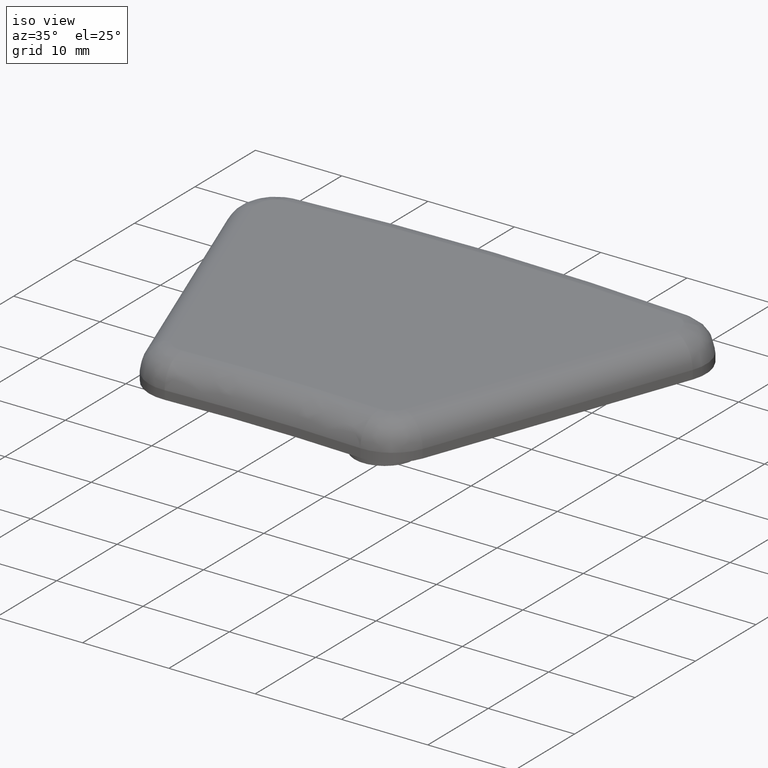
[diagram: clean part render]
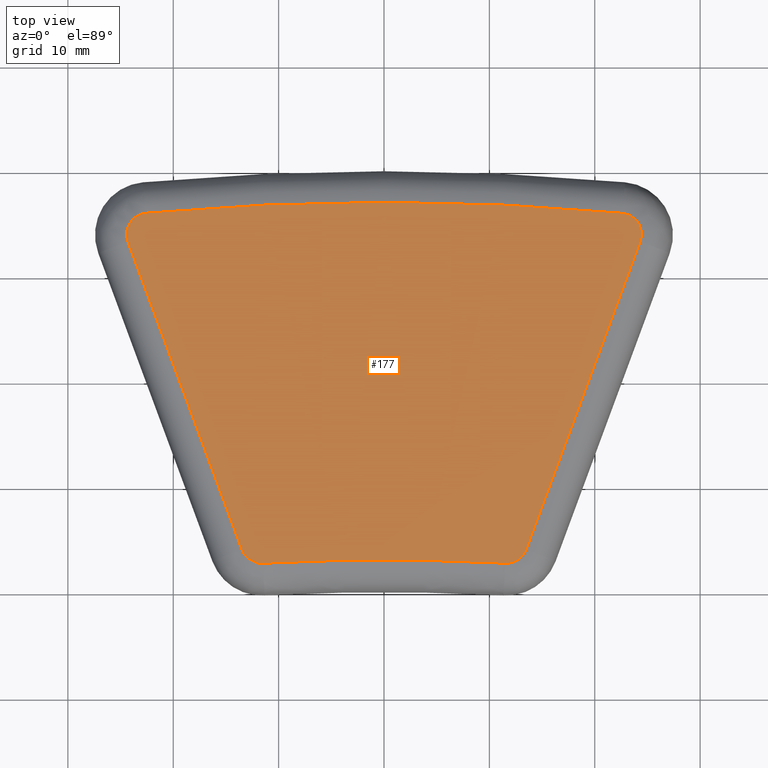
[diagram: tour spotlight — one face highlighted and labeled with its STEP entity id]
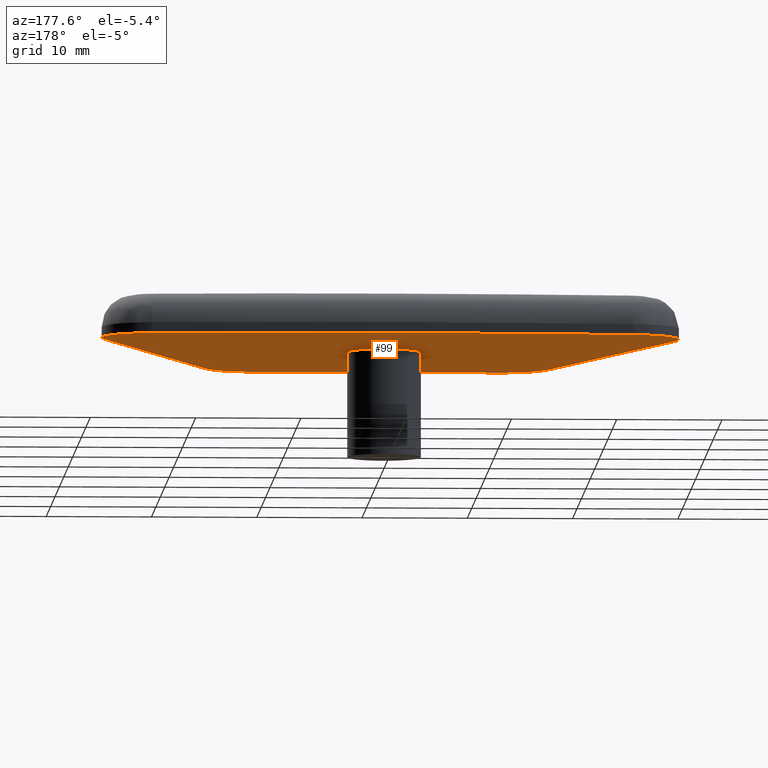
[diagram: tour spotlight — one face highlighted and labeled with its STEP entity id]
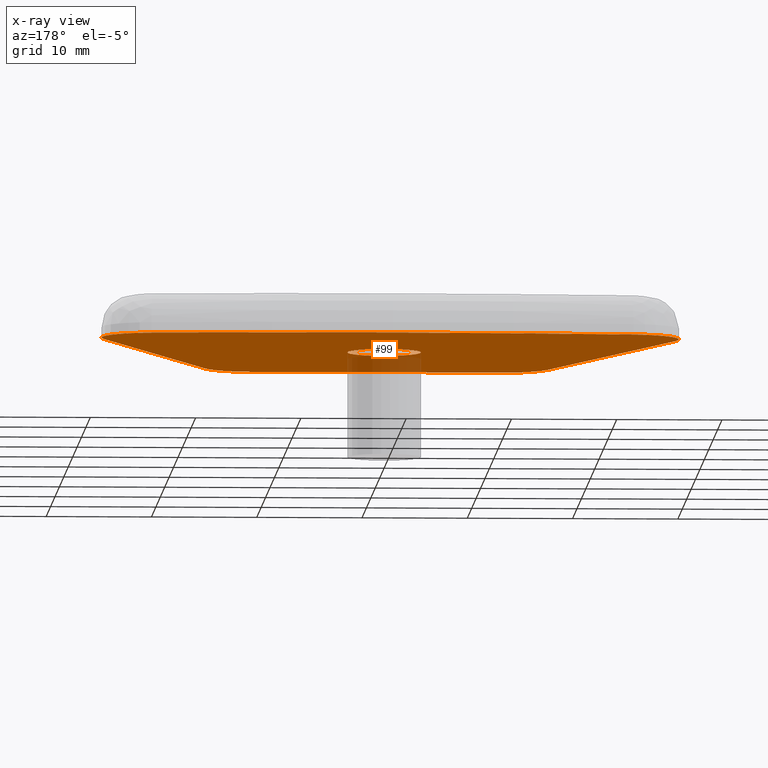
[diagram: x-ray of the same camera — body ghosted, this tour face saturated]
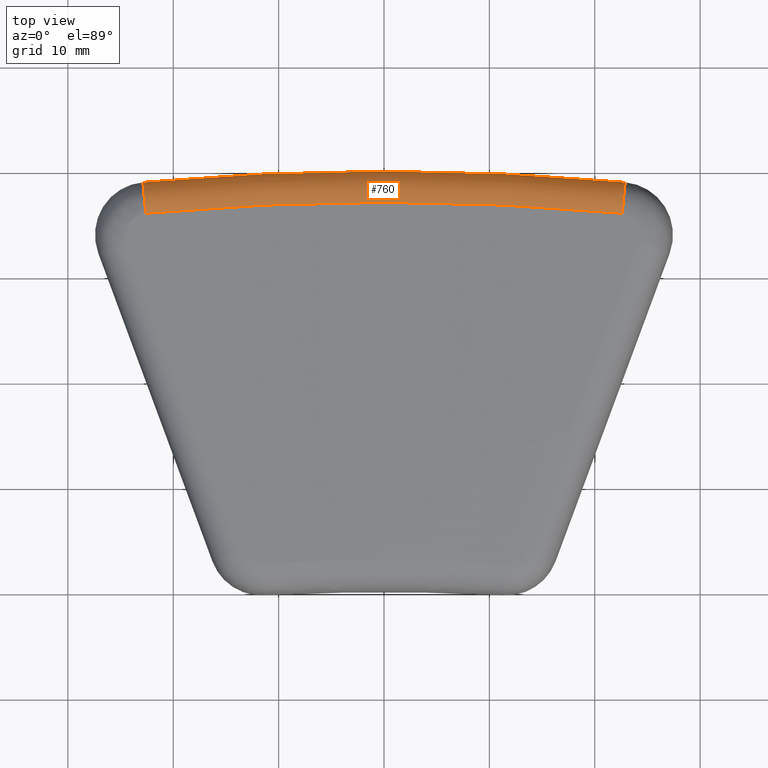
[diagram: tour spotlight — one face highlighted and labeled with its STEP entity id]
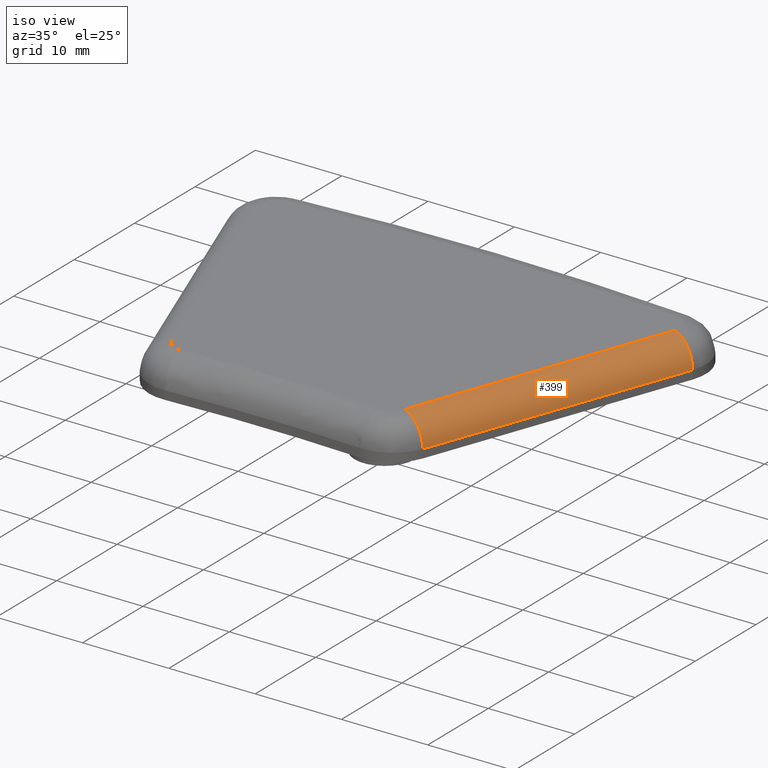
[diagram: tour spotlight — one face highlighted and labeled with its STEP entity id]
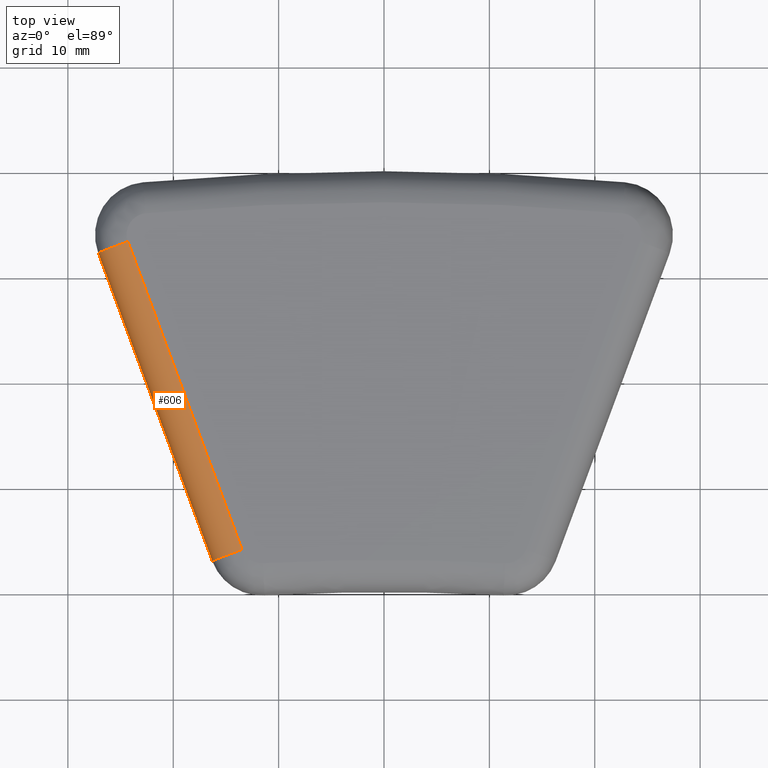
[diagram: tour spotlight — one face highlighted and labeled with its STEP entity id]
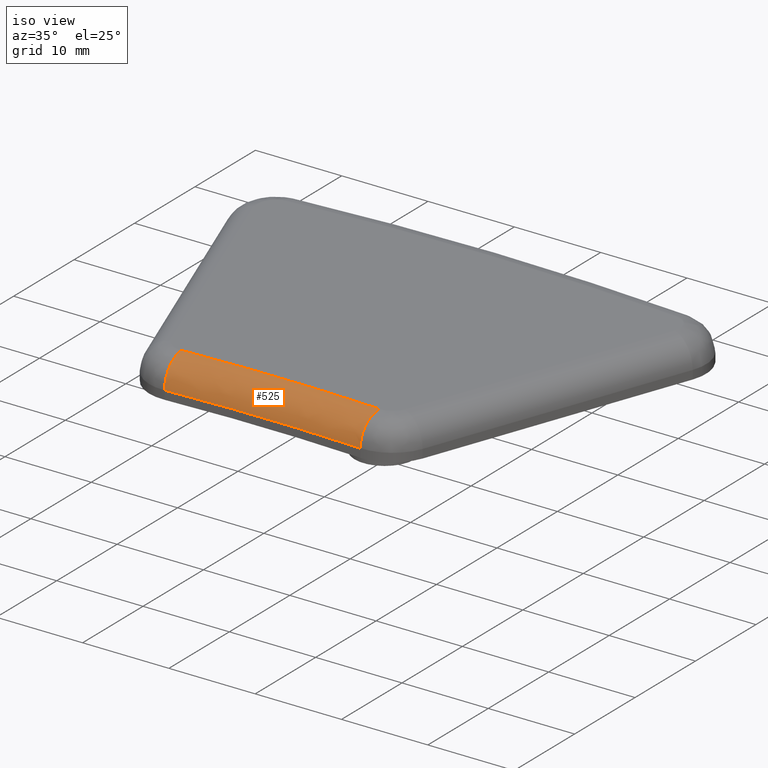
[diagram: tour spotlight — one face highlighted and labeled with its STEP entity id]
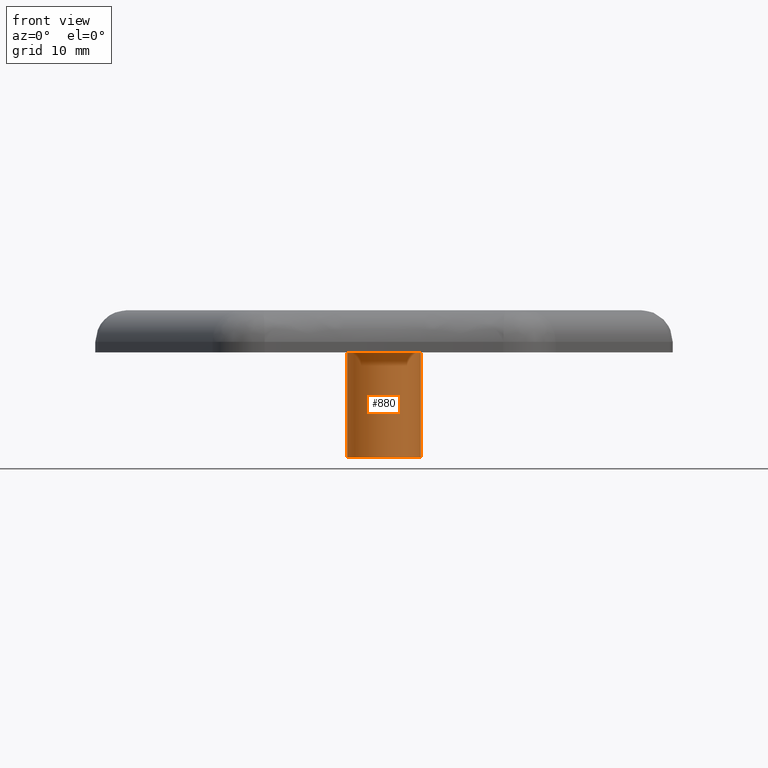
[diagram: tour spotlight — one face highlighted and labeled with its STEP entity id]
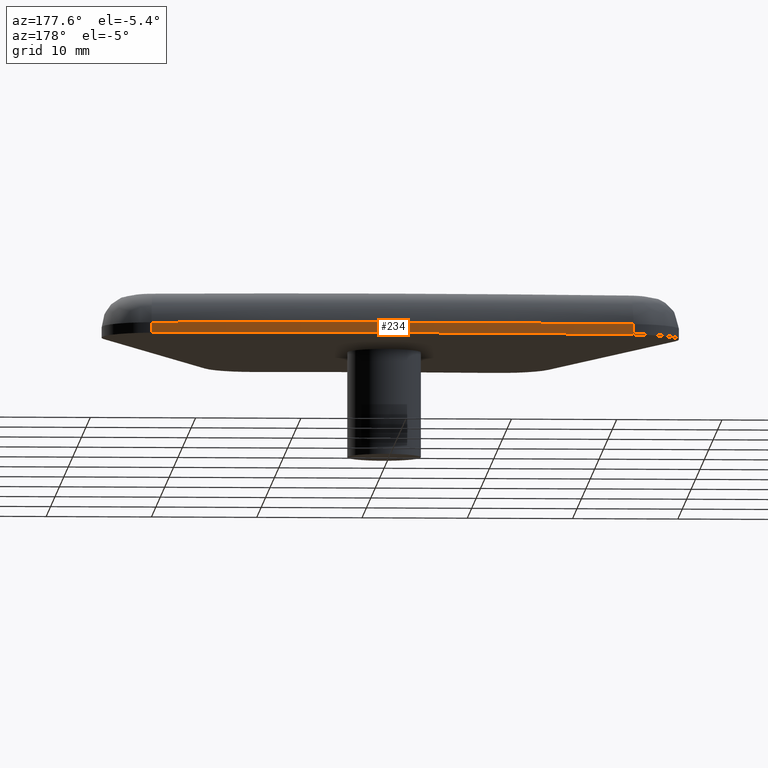
[diagram: tour spotlight — one face highlighted and labeled with its STEP entity id]
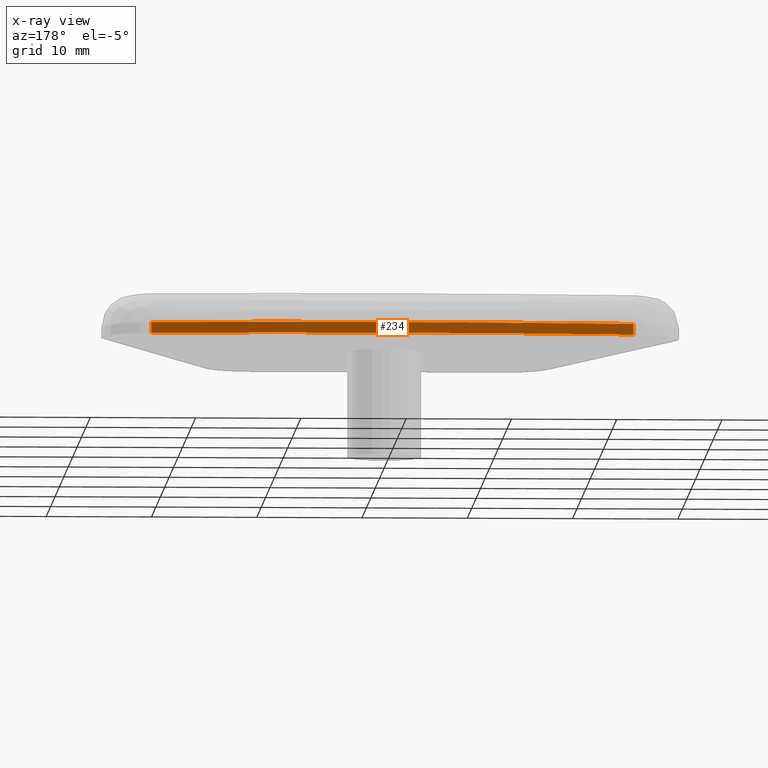
[diagram: x-ray of the same camera — body ghosted, this tour face saturated]
A machine part: a face-by-face anatomy tour. The part has 20 B-rep faces; the first image is the clean iso view, then the 8 largest visible faces are spotlighted one at a time (largest first), each with its STEP entity span.

Face 1 — top view, entity #177. In plain terms, the highlighted planar face has unit normal (0, 0, 1).
Definition (entity closure, byte-faithful):
#100=CARTESIAN_POINT('',(-35.220002198517058,-24.523297898567506,4.0));
#101=DIRECTION('',(0.0,0.0,1.0));
#102=DIRECTION('',(1.0,0.0,0.0));
#103=AXIS2_PLACEMENT_3D('',#100,#101,#102);
#104=PLANE('',#103);
#105=CARTESIAN_POINT('',(13.477986189388396,-15.947281593540907,4.0));
#106=VERTEX_POINT('',#105);
#107=CARTESIAN_POINT('',(24.301222518549679,13.276890070985850,4.0));
#108=VERTEX_POINT('',#107);
#109=CARTESIAN_POINT('',(13.477986189388396,-15.947281593540907,4.0));
#110=DIRECTION('',(0.347299373539241,0.937754309581807,0.0));
#111=VECTOR('',#110,31.163996119153357);
#112=LINE('',#109,#111);
#113=EDGE_CURVE('',#106,#108,#112,.T.);
#114=ORIENTED_EDGE('',*,*,#113,.T.);
#115=CARTESIAN_POINT('',(22.608780951625953,15.963092808415865,4.0));
#116=VERTEX_POINT('',#115);
#117=CARTESIAN_POINT('',(22.425713899386064,13.971488818064330,4.0));
#118=DIRECTION('',(0.0,0.0,-1.0));
#119=DIRECTION('',(0.091533526119945,0.995801995175773,0.0));
#120=AXIS2_PLACEMENT_3D('',#117,#118,#119);
#121=CIRCLE('',#120,1.999999999999990);
#122=EDGE_CURVE('',#116,#108,#121,.T.);
#123=ORIENTED_EDGE('',*,*,#122,.F.);
#124=CARTESIAN_POINT('',(-22.608780951626066,15.963092808415876,4.0));
#125=VERTEX_POINT('',#124);
#126=CARTESIAN_POINT('',(-3.197442E-014,-230.0,4.0));
#127=DIRECTION('',(0.0,0.0,1.0));
#128=DIRECTION('',(0.117400000000000,0.993084709377805,0.0));
#129=AXIS2_PLACEMENT_3D('',#126,#127,#128);
#130=CIRCLE('',#129,247.0);
#131=EDGE_CURVE('',#116,#125,#130,.T.);
#132=ORIENTED_EDGE('',*,*,#131,.T.);
#133=CARTESIAN_POINT('',(-24.301222518549796,13.276890070985850,4.0));
#134=VERTEX_POINT('',#133);
#135=CARTESIAN_POINT('',(-22.425713899386182,13.971488818064332,4.0));
#136=DIRECTION('',(0.0,0.0,-1.0));
#137=DIRECTION('',(-0.937754309581807,-0.347299373539241,0.0));
#138=AXIS2_PLACEMENT_3D('',#135,#136,#137);
#139=CIRCLE('',#138,2.000000000000001);
#140=EDGE_CURVE('',#134,#125,#139,.T.);
#141=ORIENTED_EDGE('',*,*,#140,.F.);
#142=CARTESIAN_POINT('',(-13.477986189388506,-15.947281593540904,4.0));
#143=VERTEX_POINT('',#142);
#144=CARTESIAN_POINT('',(-24.301222518549796,13.276890070985850,4.0));
#145=DIRECTION('',(0.347299373539241,-0.937754309581807,0.0));
#146=VECTOR('',#145,31.163996119153349);
#147=LINE('',#144,#146);
#148=EDGE_CURVE('',#134,#143,#147,.T.);
#149=ORIENTED_EDGE('',*,*,#148,.T.);
#150=CARTESIAN_POINT('',(-11.494577919335303,-17.249770141834830,4.0));
#151=VERTEX_POINT('',#150);
#152=CARTESIAN_POINT('',(-11.602477570224877,-15.252682846462420,4.0));
#153=DIRECTION('',(0.0,0.0,-1.0));
#154=DIRECTION('',(0.053949825444788,-0.998543647686208,0.0));
#155=AXIS2_PLACEMENT_3D('',#152,#153,#154);
#156=CIRCLE('',#155,2.000000000000015);
#157=EDGE_CURVE('',#151,#143,#156,.T.);
#158=ORIENTED_EDGE('',*,*,#157,.F.);
#159=CARTESIAN_POINT('',(11.494577919335192,-17.249770141834844,4.0));
#160=VERTEX_POINT('',#159);
#161=CARTESIAN_POINT('',(-3.907985E-014,-230.000000000000060,4.000000000000002));
#162=DIRECTION('',(0.0,0.0,-1.000000000000000));
#163=DIRECTION('',(0.071407991971395,0.997447190924218,0.0));
#164=AXIS2_PLACEMENT_3D('',#161,#162,#163);
#165=CIRCLE('',#164,213.060521040960960);
#166=EDGE_CURVE('',#151,#160,#165,.T.);
#167=ORIENTED_EDGE('',*,*,#166,.T.);
#168=CARTESIAN_POINT('',(11.602477570224773,-15.252682846462422,4.0));
#169=DIRECTION('',(0.0,0.0,-1.0));
#170=DIRECTION('',(0.937754309581807,-0.347299373539241,0.0));
#171=AXIS2_PLACEMENT_3D('',#168,#169,#170);
#172=CIRCLE('',#171,2.000000000000009);
#173=EDGE_CURVE('',#106,#160,#172,.T.);
#174=ORIENTED_EDGE('',*,*,#173,.F.);
#175=EDGE_LOOP('',(#114,#123,#132,#141,#149,#158,#167,#174));
#176=FACE_OUTER_BOUND('',#175,.T.);
#177=ADVANCED_FACE('',(#176),#104,.T.);

Face 2 — auxiliary view, entity #99. An x-ray twin of the same camera follows (body ghosted, this face saturated) — the face is partly hidden behind the body. In plain terms, the highlighted planar face has unit normal (0, 0, 1).
Definition (entity closure, byte-faithful):
#2=CARTESIAN_POINT('',(-35.220002198517058,-24.523297898567506,0.0));
#3=DIRECTION('',(0.0,0.0,1.0));
#4=DIRECTION('',(1.0,0.0,0.0));
#5=AXIS2_PLACEMENT_3D('',#2,#3,#4);
#6=PLANE('',#5);
#7=CARTESIAN_POINT('',(22.883381529985783,18.950498793943183,0.0));
#8=VERTEX_POINT('',#7);
#9=CARTESIAN_POINT('',(27.114485447295095,12.234991950368126,0.0));
#10=VERTEX_POINT('',#9);
#11=CARTESIAN_POINT('',(22.425713899386064,13.971488818064330,0.0));
#12=DIRECTION('',(0.0,0.0,-1.0));
#13=DIRECTION('',(0.091533526119945,0.995801995175773,0.0));
#14=AXIS2_PLACEMENT_3D('',#11,#12,#13);
#15=CIRCLE('',#14,4.999999999999990);
#16=EDGE_CURVE('',#8,#10,#15,.T.);
#17=ORIENTED_EDGE('',*,*,#16,.T.);
#18=CARTESIAN_POINT('',(16.291249118133813,-16.989179714158627,0.0));
#19=VERTEX_POINT('',#18);
#20=CARTESIAN_POINT('',(16.291249118133813,-16.989179714158627,0.0));
#21=DIRECTION('',(0.347299373539241,0.937754309581807,0.0));
#22=VECTOR('',#21,31.163996119153349);
#23=LINE('',#20,#22);
#24=EDGE_CURVE('',#19,#10,#23,.T.);
#25=ORIENTED_EDGE('',*,*,#24,.F.);
#26=CARTESIAN_POINT('',(11.332728443000832,-20.245401084893473,0.0));
#27=VERTEX_POINT('',#26);
#28=CARTESIAN_POINT('',(11.602477570224773,-15.252682846462422,0.0));
#29=DIRECTION('',(0.0,0.0,-1.0));
#30=DIRECTION('',(0.937754309581807,-0.347299373539241,0.0));
#31=AXIS2_PLACEMENT_3D('',#28,#29,#30);
#32=CIRCLE('',#31,5.000000000000009);
#33=EDGE_CURVE('',#19,#27,#32,.T.);
#34=ORIENTED_EDGE('',*,*,#33,.T.);
#35=CARTESIAN_POINT('',(-11.332728443000939,-20.245401084893473,0.0));
#36=VERTEX_POINT('',#35);
#37=CARTESIAN_POINT('',(-3.907985E-014,-230.000000000000060,0.0));
#38=DIRECTION('',(0.0,0.0,-1.000000000000000));
#39=DIRECTION('',(0.071407991971395,0.997447190924218,0.0));
#40=AXIS2_PLACEMENT_3D('',#37,#38,#39);
#41=CIRCLE('',#40,210.060521040960960);
#42=EDGE_CURVE('',#36,#27,#41,.T.);
#43=ORIENTED_EDGE('',*,*,#42,.F.);
#44=CARTESIAN_POINT('',(-16.291249118133926,-16.989179714158624,0.0));
#45=VERTEX_POINT('',#44);
#46=CARTESIAN_POINT('',(-11.602477570224877,-15.252682846462420,0.0));
#47=DIRECTION('',(0.0,0.0,-1.0));
#48=DIRECTION('',(0.053949825444788,-0.998543647686208,0.0));
#49=AXIS2_PLACEMENT_3D('',#46,#47,#48);
#50=CIRCLE('',#49,5.000000000000015);
#51=EDGE_CURVE('',#36,#45,#50,.T.);
#52=ORIENTED_EDGE('',*,*,#51,.T.);
#53=CARTESIAN_POINT('',(-27.114485447295216,12.234991950368126,0.0));
#54=VERTEX_POINT('',#53);
#55=CARTESIAN_POINT('',(-27.114485447295216,12.234991950368133,0.0));
#56=DIRECTION('',(0.347299373539241,-0.937754309581807,0.0));
#57=VECTOR('',#56,31.163996119153353);
#58=LINE('',#55,#57);
#59=EDGE_CURVE('',#54,#45,#58,.T.);
#60=ORIENTED_EDGE('',*,*,#59,.F.);
#61=CARTESIAN_POINT('',(-22.883381529985897,18.950498793943183,0.0));
#62=VERTEX_POINT('',#61);
#63=CARTESIAN_POINT('',(-22.425713899386182,13.971488818064332,0.0));
#64=DIRECTION('',(0.0,0.0,-1.0));
#65=DIRECTION('',(-0.937754309581807,-0.347299373539241,0.0));
#66=AXIS2_PLACEMENT_3D('',#63,#64,#65);
#67=CIRCLE('',#66,5.000000000000001);
#68=EDGE_CURVE('',#54,#62,#67,.T.);
#69=ORIENTED_EDGE('',*,*,#68,.T.);
#70=CARTESIAN_POINT('',(-3.197442E-014,-230.0,0.0));
#71=DIRECTION('',(0.0,0.0,1.0));
#72=DIRECTION('',(0.117400000000000,0.993084709377805,0.0));
#73=AXIS2_PLACEMENT_3D('',#70,#71,#72);
#74=CIRCLE('',#73,250.0);
#75=EDGE_CURVE('',#8,#62,#74,.T.);
#76=ORIENTED_EDGE('',*,*,#75,.F.);
#77=EDGE_LOOP('',(#17,#25,#34,#43,#52,#60,#69,#76));
#78=FACE_OUTER_BOUND('',#77,.T.);
#79=CARTESIAN_POINT('',(-3.500000000000000,0.0,0.0));
#80=VERTEX_POINT('',#79);
#81=CARTESIAN_POINT('',(3.500000000000000,0.0,0.0));
#82=VERTEX_POINT('',#81);
#83=CARTESIAN_POINT('',(0.0,0.0,0.0));
#84=DIRECTION('',(0.0,0.0,-1.0));
#85=DIRECTION('',(1.0,0.0,0.0));
#86=AXIS2_PLACEMENT_3D('',#83,#84,#85);
#87=CIRCLE('',#86,3.500000000000000);
#88=EDGE_CURVE('',#80,#82,#87,.T.);
#89=ORIENTED_EDGE('',*,*,#88,.F.);
#90=CARTESIAN_POINT('',(0.0,0.0,0.0));
#91=DIRECTION('',(0.0,0.0,-1.0));
#92=DIRECTION('',(1.0,0.0,0.0));
#93=AXIS2_PLACEMENT_3D('',#90,#91,#92);
#94=CIRCLE('',#93,3.500000000000000);
#95=EDGE_CURVE('',#82,#80,#94,.T.);
#96=ORIENTED_EDGE('',*,*,#95,.F.);
#97=EDGE_LOOP('',(#89,#96));
#98=FACE_BOUND('',#97,.T.);
#99=ADVANCED_FACE('',(#78,#98),#6,.F.);

Face 3 — top view, entity #760. In plain terms, the highlighted face is a freeform B-spline surface patch.
Definition (entity closure, byte-faithful):
#115=CARTESIAN_POINT('',(22.608780951625953,15.963092808415865,4.0));
#116=VERTEX_POINT('',#115);
#124=CARTESIAN_POINT('',(-22.608780951626066,15.963092808415876,4.0));
#125=VERTEX_POINT('',#124);
#126=CARTESIAN_POINT('',(-3.197442E-014,-230.0,4.0));
#127=DIRECTION('',(0.0,0.0,1.0));
#128=DIRECTION('',(0.117400000000000,0.993084709377805,0.0));
#129=AXIS2_PLACEMENT_3D('',#126,#127,#128);
#130=CIRCLE('',#129,247.0);
#131=EDGE_CURVE('',#116,#125,#130,.T.);
#183=CARTESIAN_POINT('',(22.883381529985748,18.950498793943183,1.0));
#184=VERTEX_POINT('',#183);
#216=CARTESIAN_POINT('',(-22.883381529985897,18.950498793943193,1.0));
#217=VERTEX_POINT('',#216);
#224=CARTESIAN_POINT('',(-3.197442E-014,-230.0,1.0));
#225=DIRECTION('',(0.0,0.0,1.0));
#226=DIRECTION('',(0.117400000000000,0.993084709377805,0.0));
#227=AXIS2_PLACEMENT_3D('',#224,#225,#226);
#228=CIRCLE('',#227,250.0);
#229=EDGE_CURVE('',#184,#217,#228,.T.);
#687=CARTESIAN_POINT('',(-22.608780951626063,15.963092808415867,1.0));
#688=DIRECTION('',(-0.995801995175776,-0.091533526119909,0.0));
#689=DIRECTION('',(-0.091533526119909,0.995801995175776,0.0));
#690=AXIS2_PLACEMENT_3D('',#687,#688,#689);
#691=CIRCLE('',#690,3.000000000000018);
#692=EDGE_CURVE('',#125,#217,#691,.T.);
#698=CARTESIAN_POINT('',(22.883381529985748,18.950498793943183,1.0));
#699=CARTESIAN_POINT('',(22.883381529985748,18.950498793943183,1.390180644032256));
#700=CARTESIAN_POINT('',(22.869091651967217,18.795037842695393,2.179083452029825));
#701=CARTESIAN_POINT('',(22.807979756666082,18.130195682128935,3.176238734418838));
#702=CARTESIAN_POINT('',(22.716706617579909,17.137226462425915,3.843883671652664));
#703=CARTESIAN_POINT('',(22.644495561797971,16.351635472222156,4.000000000000000));
#704=CARTESIAN_POINT('',(22.608780951625953,15.963092808415865,4.0));
#705=CARTESIAN_POINT('',(19.080504757959297,19.300056961158727,1.0));
#706=CARTESIAN_POINT('',(19.080504757959297,19.300056961158731,1.390180644032254));
#707=CARTESIAN_POINT('',(19.068589644575990,19.144377722960503,2.179083452029818));
#708=CARTESIAN_POINT('',(19.017633634969922,18.478602039431614,3.176238734418830));
#709=CARTESIAN_POINT('',(18.941528730529747,17.484238564636836,3.843883671652659));
#710=CARTESIAN_POINT('',(18.881318075403488,16.697544504754376,3.999999999999998));
#711=CARTESIAN_POINT('',(18.851538700863809,16.308456277624845,4.0));
#712=CARTESIAN_POINT('',(11.457585566760093,19.824945263823210,1.0));
#713=CARTESIAN_POINT('',(11.457585566760093,19.824945263823217,1.390180644032250));
#714=CARTESIAN_POINT('',(11.450430701998467,19.668938251086580,2.179083452029807));
#715=CARTESIAN_POINT('',(11.419832306012170,19.001760811486157,3.176238734418817));
#716=CARTESIAN_POINT('',(11.374132338126904,18.005303756116724,3.843883671652653));
#717=CARTESIAN_POINT('',(11.337976652420942,17.216953352810830,3.999999999999996));
#718=CARTESIAN_POINT('',(11.320094539958967,16.827045920657387,4.0));
#719=CARTESIAN_POINT('',(-1.643130E-014,20.087527368088391,1.000000000000000));
#720=CARTESIAN_POINT('',(-1.643130E-014,20.087527368088384,1.390180644032265));
#721=CARTESIAN_POINT('',(-1.731948E-014,19.931356381935693,2.179083452029851));
#722=CARTESIAN_POINT('',(-2.398082E-014,19.263477695885133,3.176238734418869));
#723=CARTESIAN_POINT('',(-3.552714E-014,18.265973299986339,3.843883671652680));
#724=CARTESIAN_POINT('',(-4.485301E-014,17.476794289642921,4.000000000000005));
#725=CARTESIAN_POINT('',(-4.796163E-014,17.086477039671262,3.999999999999999));
#726=CARTESIAN_POINT('',(-11.457585566760146,19.824945263823210,1.000000000000000));
#727=CARTESIAN_POINT('',(-11.457585566760146,19.824945263823214,1.390180644032250));
#728=CARTESIAN_POINT('',(-11.450430701998526,19.668938251086594,2.179083452029804));
#729=CARTESIAN_POINT('',(-11.419832306012246,19.001760811486150,3.176238734418818));
#730=CARTESIAN_POINT('',(-11.374132338126996,18.005303756116728,3.843883671652650));
#731=CARTESIAN_POINT('',(-11.337976652421050,17.216953352810837,3.999999999999995));
#732=CARTESIAN_POINT('',(-11.320094539959088,16.827045920657390,4.000000000000001));
#733=CARTESIAN_POINT('',(-19.080504757959332,19.300056961158742,1.0));
#734=CARTESIAN_POINT('',(-19.080504757959332,19.300056961158745,1.390180644032255));
#735=CARTESIAN_POINT('',(-19.068589644576040,19.144377722960520,2.179083452029821));
#736=CARTESIAN_POINT('',(-19.017633634969972,18.478602039431621,3.176238734418835));
#737=CARTESIAN_POINT('',(-18.941528730529829,17.484238564636836,3.843883671652660));
#738=CARTESIAN_POINT('',(-18.881318075403584,16.697544504754376,3.999999999999999));
#739=CARTESIAN_POINT('',(-18.851538700863912,16.308456277624845,4.0));
#740=CARTESIAN_POINT('',(-22.883381529985787,18.950498793943211,1.0));
#741=CARTESIAN_POINT('',(-22.883381529985787,18.950498793943211,1.390180644032259));
#742=CARTESIAN_POINT('',(-22.869091651967270,18.795037842695415,2.179083452029833));
#743=CARTESIAN_POINT('',(-22.807979756666128,18.130195682128949,3.176238734418847));
#744=CARTESIAN_POINT('',(-22.716706617579995,17.137226462425915,3.843883671652668));
#745=CARTESIAN_POINT('',(-22.644495561798067,16.351635472222156,4.000000000000002));
#746=CARTESIAN_POINT('',(-22.608780951626059,15.963092808415865,4.0));
#747=B_SPLINE_SURFACE_WITH_KNOTS('',3,3,((#698,#705,#712,#719,#726,#733,#740),(#699,#706,#713,#720,#727,#734,#741),(#700,#707,#714,#721,#728,#735,#742),(#701,#708,#715,#722,#729,#736,#743),(#702,#709,#716,#723,#730,#737,#744),(#703,#710,#717,#724,#731,#738,#745),(#704,#711,#718,#725,#732,#739,#746)),.UNSPECIFIED.,.F.,.F.,.U.,(4,1,1,1,4),(4,1,1,1,4),(0.0,1.170541932096769,2.341083864193537,3.511625796290307,4.682167728387077),(0.0,11.402109287748962,22.804218575497931,34.206327863246884,45.608437150995861),.UNSPECIFIED.);
#748=ORIENTED_EDGE('',*,*,#692,.F.);
#749=ORIENTED_EDGE('',*,*,#131,.F.);
#750=CARTESIAN_POINT('',(22.608780951625956,15.963092808415869,1.0));
#751=DIRECTION('',(0.995801995175774,-0.091533526119932,0.0));
#752=DIRECTION('',(0.091533526119932,0.995801995175774,0.0));
#753=AXIS2_PLACEMENT_3D('',#750,#751,#752);
#754=CIRCLE('',#753,2.999999999999996);
#755=EDGE_CURVE('',#184,#116,#754,.T.);
#756=ORIENTED_EDGE('',*,*,#755,.F.);
#757=ORIENTED_EDGE('',*,*,#229,.T.);
#758=EDGE_LOOP('',(#748,#749,#756,#757));
#759=FACE_OUTER_BOUND('',#758,.T.);
#760=ADVANCED_FACE('',(#759),#747,.F.);

Face 4 — iso view, entity #399. In plain terms, the highlighted cylindrical surface (edge-blend (fillet) strip) has radius 3 mm, axis along (-0.3473, -0.9378, 0).
Definition (entity closure, byte-faithful):
#105=CARTESIAN_POINT('',(13.477986189388396,-15.947281593540907,4.0));
#106=VERTEX_POINT('',#105);
#107=CARTESIAN_POINT('',(24.301222518549679,13.276890070985850,4.0));
#108=VERTEX_POINT('',#107);
#109=CARTESIAN_POINT('',(13.477986189388396,-15.947281593540907,4.0));
#110=DIRECTION('',(0.347299373539241,0.937754309581807,0.0));
#111=VECTOR('',#110,31.163996119153357);
#112=LINE('',#109,#111);
#113=EDGE_CURVE('',#106,#108,#112,.T.);
#191=CARTESIAN_POINT('',(27.114485447295095,12.234991950368126,1.0));
#192=VERTEX_POINT('',#191);
#339=CARTESIAN_POINT('',(16.291249118133813,-16.989179714158627,1.0));
#340=VERTEX_POINT('',#339);
#366=CARTESIAN_POINT('',(16.291249118133813,-16.989179714158627,1.0));
#367=DIRECTION('',(0.347299373539241,0.937754309581807,0.0));
#368=VECTOR('',#367,31.163996119153353);
#369=LINE('',#366,#368);
#370=EDGE_CURVE('',#340,#192,#369,.T.);
#376=CARTESIAN_POINT('',(13.477986189388396,-15.947281593540907,1.0));
#377=DIRECTION('',(-0.347299373539241,-0.937754309581807,0.0));
#378=DIRECTION('',(0.937754309581807,-0.347299373539241,0.0));
#379=AXIS2_PLACEMENT_3D('',#376,#377,#378);
#380=CYLINDRICAL_SURFACE('',#379,2.999999999999996);
#381=ORIENTED_EDGE('',*,*,#370,.T.);
#382=CARTESIAN_POINT('',(24.301222518549679,13.276890070985857,1.0));
#383=DIRECTION('',(0.347299373539241,0.937754309581807,0.0));
#384=DIRECTION('',(0.937754309581807,-0.347299373539241,0.0));
#385=AXIS2_PLACEMENT_3D('',#382,#383,#384);
#386=CIRCLE('',#385,2.999999999999996);
#387=EDGE_CURVE('',#108,#192,#386,.T.);
#388=ORIENTED_EDGE('',*,*,#387,.F.);
#389=ORIENTED_EDGE('',*,*,#113,.F.);
#390=CARTESIAN_POINT('',(13.477986189388398,-15.947281593540907,1.0));
#391=DIRECTION('',(-0.347299373539241,-0.937754309581807,0.0));
#392=DIRECTION('',(0.937754309581807,-0.347299373539241,0.0));
#393=AXIS2_PLACEMENT_3D('',#390,#391,#392);
#394=CIRCLE('',#393,2.999999999999996);
#395=EDGE_CURVE('',#340,#106,#394,.T.);
#396=ORIENTED_EDGE('',*,*,#395,.F.);
#397=EDGE_LOOP('',(#381,#388,#389,#396));
#398=FACE_OUTER_BOUND('',#397,.T.);
#399=ADVANCED_FACE('',(#398),#380,.T.);

Face 5 — top view, entity #606. In plain terms, the highlighted cylindrical surface (edge-blend (fillet) strip) has radius 3 mm, axis along (-0.3473, 0.9378, 0).
Definition (entity closure, byte-faithful):
#133=CARTESIAN_POINT('',(-24.301222518549796,13.276890070985850,4.0));
#134=VERTEX_POINT('',#133);
#142=CARTESIAN_POINT('',(-13.477986189388506,-15.947281593540904,4.0));
#143=VERTEX_POINT('',#142);
#144=CARTESIAN_POINT('',(-24.301222518549796,13.276890070985850,4.0));
#145=DIRECTION('',(0.347299373539241,-0.937754309581807,0.0));
#146=VECTOR('',#145,31.163996119153349);
#147=LINE('',#144,#146);
#148=EDGE_CURVE('',#134,#143,#147,.T.);
#240=CARTESIAN_POINT('',(-27.114485447295216,12.234991950368126,1.0));
#241=VERTEX_POINT('',#240);
#266=CARTESIAN_POINT('',(-16.291249118133926,-16.989179714158624,1.0));
#267=VERTEX_POINT('',#266);
#274=CARTESIAN_POINT('',(-27.114485447295216,12.234991950368126,1.0));
#275=DIRECTION('',(0.347299373539241,-0.937754309581807,0.0));
#276=VECTOR('',#275,31.163996119153346);
#277=LINE('',#274,#276);
#278=EDGE_CURVE('',#241,#267,#277,.T.);
#578=CARTESIAN_POINT('',(-13.477986189388496,-15.947281593540907,1.0));
#579=DIRECTION('',(0.347299373539241,-0.937754309581807,0.0));
#580=DIRECTION('',(-0.937754309581807,-0.347299373539241,0.0));
#581=AXIS2_PLACEMENT_3D('',#578,#579,#580);
#582=CIRCLE('',#581,3.000000000000000);
#583=EDGE_CURVE('',#143,#267,#582,.T.);
#589=CARTESIAN_POINT('',(-24.301222518549796,13.276890070985850,1.0));
#590=DIRECTION('',(-0.347299373539241,0.937754309581807,0.0));
#591=DIRECTION('',(-0.937754309581807,-0.347299373539241,0.0));
#592=AXIS2_PLACEMENT_3D('',#589,#590,#591);
#593=CYLINDRICAL_SURFACE('',#592,3.000000000000000);
#594=ORIENTED_EDGE('',*,*,#583,.F.);
#595=ORIENTED_EDGE('',*,*,#148,.F.);
#596=CARTESIAN_POINT('',(-24.301222518549800,13.276890070985850,1.0));
#597=DIRECTION('',(-0.347299373539241,0.937754309581807,0.0));
#598=DIRECTION('',(-0.937754309581807,-0.347299373539241,0.0));
#599=AXIS2_PLACEMENT_3D('',#596,#597,#598);
#600=CIRCLE('',#599,3.000000000000000);
#601=EDGE_CURVE('',#241,#134,#600,.T.);
#602=ORIENTED_EDGE('',*,*,#601,.F.);
#603=ORIENTED_EDGE('',*,*,#278,.T.);
#604=EDGE_LOOP('',(#594,#595,#602,#603));
#605=FACE_OUTER_BOUND('',#604,.T.);
#606=ADVANCED_FACE('',(#605),#593,.T.);

Face 6 — iso view, entity #525. In plain terms, the highlighted face is a freeform B-spline surface patch.
Definition (entity closure, byte-faithful):
#150=CARTESIAN_POINT('',(-11.494577919335303,-17.249770141834830,4.0));
#151=VERTEX_POINT('',#150);
#159=CARTESIAN_POINT('',(11.494577919335192,-17.249770141834844,4.0));
#160=VERTEX_POINT('',#159);
#161=CARTESIAN_POINT('',(-3.907985E-014,-230.000000000000060,4.000000000000002));
#162=DIRECTION('',(0.0,0.0,-1.000000000000000));
#163=DIRECTION('',(0.071407991971395,0.997447190924218,0.0));
#164=AXIS2_PLACEMENT_3D('',#161,#162,#163);
#165=CIRCLE('',#164,213.060521040960960);
#166=EDGE_CURVE('',#151,#160,#165,.T.);
#289=CARTESIAN_POINT('',(-11.332728443000917,-20.245401084893473,1.0));
#290=VERTEX_POINT('',#289);
#315=CARTESIAN_POINT('',(11.332728443000832,-20.245401084893466,1.0));
#316=VERTEX_POINT('',#315);
#323=CARTESIAN_POINT('',(-3.907985E-014,-230.000000000000060,1.000000000000000));
#324=DIRECTION('',(0.0,0.0,-1.000000000000000));
#325=DIRECTION('',(0.071407991971395,0.997447190924218,0.0));
#326=AXIS2_PLACEMENT_3D('',#323,#324,#325);
#327=CIRCLE('',#326,210.060521040960960);
#328=EDGE_CURVE('',#290,#316,#327,.T.);
#452=CARTESIAN_POINT('',(11.494577919335194,-17.249770141834833,1.0));
#453=DIRECTION('',(0.998543647686208,-0.053949825444777,0.0));
#454=DIRECTION('',(-0.053949825444777,-0.998543647686208,0.0));
#455=AXIS2_PLACEMENT_3D('',#452,#453,#454);
#456=CIRCLE('',#455,3.000000000000019);
#457=EDGE_CURVE('',#160,#316,#456,.T.);
#463=CARTESIAN_POINT('',(-11.332728443000919,-20.245401084893473,1.0));
#464=CARTESIAN_POINT('',(-11.332728443000919,-20.245401084893469,1.390180644032259));
#465=CARTESIAN_POINT('',(-11.341150891664341,-20.089512116922140,2.179083452029833));
#466=CARTESIAN_POINT('',(-11.377170219487205,-19.422839505937439,3.176238734418849));
#467=CARTESIAN_POINT('',(-11.430966572913450,-18.427136432951144,3.843883671652669));
#468=CARTESIAN_POINT('',(-11.473527741697826,-17.639382545383352,4.000000000000002));
#469=CARTESIAN_POINT('',(-11.494577919335303,-17.249770141834830,4.0));
#470=CARTESIAN_POINT('',(-9.445832262894417,-20.143454895775882,1.0));
#471=CARTESIAN_POINT('',(-9.445832262894417,-20.143454895775882,1.390180644032257));
#472=CARTESIAN_POINT('',(-9.452852376163492,-19.987490161712692,2.179083452029825));
#473=CARTESIAN_POINT('',(-9.482874495774688,-19.320493530504223,3.176238734418841));
#474=CARTESIAN_POINT('',(-9.527713771097970,-18.324306519934165,3.843883671652664));
#475=CARTESIAN_POINT('',(-9.563188516943333,-17.536169763493817,4.0));
#476=CARTESIAN_POINT('',(-9.580733845772821,-17.146367998186456,4.0));
#477=CARTESIAN_POINT('',(-5.669092009411111,-19.990479909390430,1.000000000000000));
#478=CARTESIAN_POINT('',(-5.669092009411111,-19.990479909390430,1.390180644032252));
#479=CARTESIAN_POINT('',(-5.673305261026346,-19.834401484791371,2.179083452029814));
#480=CARTESIAN_POINT('',(-5.691323594790542,-19.166918646204792,3.176238734418828));
#481=CARTESIAN_POINT('',(-5.718234720286768,-18.170005464838855,3.843883671652656));
#482=CARTESIAN_POINT('',(-5.739525549152941,-17.381294195892711,3.999999999999998));
#483=CARTESIAN_POINT('',(-5.750055704749762,-16.991208284481107,4.000000000000001));
#484=CARTESIAN_POINT('',(-2.375877E-014,-19.913978483863335,1.000000000000000));
#485=CARTESIAN_POINT('',(-2.375877E-014,-19.913978483863335,1.390180644032258));
#486=CARTESIAN_POINT('',(-2.464695E-014,-19.757843203641844,2.179083452029829));
#487=CARTESIAN_POINT('',(-3.375078E-014,-19.090117217084423,3.176238734418849));
#488=CARTESIAN_POINT('',(-4.463097E-014,-18.092840884183865,3.843883671652668));
#489=CARTESIAN_POINT('',(-5.306866E-014,-17.303842306660577,4.0));
#490=CARTESIAN_POINT('',(-5.795364E-014,-16.913614296317995,3.999999999999999));
#491=CARTESIAN_POINT('',(5.669092009411053,-19.990479909390430,1.000000000000000));
#492=CARTESIAN_POINT('',(5.669092009411053,-19.990479909390430,1.390180644032253));
#493=CARTESIAN_POINT('',(5.673305261026282,-19.834401484791375,2.179083452029815));
#494=CARTESIAN_POINT('',(5.691323594790472,-19.166918646204792,3.176238734418826));
#495=CARTESIAN_POINT('',(5.718234720286676,-18.170005464838859,3.843883671652656));
#496=CARTESIAN_POINT('',(5.739525549152834,-17.381294195892714,3.999999999999998));
#497=CARTESIAN_POINT('',(5.750055704749649,-16.991208284481111,4.000000000000001));
#498=CARTESIAN_POINT('',(9.445832262894363,-20.143454895775882,1.0));
#499=CARTESIAN_POINT('',(9.445832262894363,-20.143454895775882,1.390180644032256));
#500=CARTESIAN_POINT('',(9.452852376163435,-19.987490161712692,2.179083452029825));
#501=CARTESIAN_POINT('',(9.482874495774619,-19.320493530504223,3.176238734418839));
#502=CARTESIAN_POINT('',(9.527713771097883,-18.324306519934165,3.843883671652663));
#503=CARTESIAN_POINT('',(9.563188516943232,-17.536169763493817,4.000000000000000));
#504=CARTESIAN_POINT('',(9.580733845772713,-17.146367998186456,4.0));
#505=CARTESIAN_POINT('',(11.332728443000864,-20.245401084893473,1.0));
#506=CARTESIAN_POINT('',(11.332728443000864,-20.245401084893473,1.390180644032259));
#507=CARTESIAN_POINT('',(11.341150891664284,-20.089512116922140,2.179083452029831));
#508=CARTESIAN_POINT('',(11.377170219487134,-19.422839505937439,3.176238734418848));
#509=CARTESIAN_POINT('',(11.430966572913363,-18.427136432951144,3.843883671652669));
#510=CARTESIAN_POINT('',(11.473527741697724,-17.639382545383352,4.000000000000002));
#511=CARTESIAN_POINT('',(11.494577919335194,-17.249770141834830,4.0));
#512=B_SPLINE_SURFACE_WITH_KNOTS('',3,3,((#463,#470,#477,#484,#491,#498,#505),(#464,#471,#478,#485,#492,#499,#506),(#465,#472,#479,#486,#493,#500,#507),(#466,#473,#480,#487,#494,#501,#508),(#467,#474,#481,#488,#495,#502,#509),(#468,#475,#482,#489,#496,#503,#510),(#469,#476,#483,#490,#497,#504,#511)),.UNSPECIFIED.,.F.,.F.,.U.,(4,1,1,1,4),(4,1,1,1,4),(0.0,1.170541932096770,2.341083864193539,3.511625796290308,4.682167728387078),(0.0,5.701107811502860,11.402215623005713,17.103323434508575,22.804431246011429),.UNSPECIFIED.);
#513=ORIENTED_EDGE('',*,*,#457,.F.);
#514=ORIENTED_EDGE('',*,*,#166,.F.);
#515=CARTESIAN_POINT('',(-11.494577919335306,-17.249770141834830,1.0));
#516=DIRECTION('',(-0.998543647686207,-0.053949825444795,0.0));
#517=DIRECTION('',(0.053949825444795,-0.998543647686207,0.0));
#518=AXIS2_PLACEMENT_3D('',#515,#516,#517);
#519=CIRCLE('',#518,3.000000000000021);
#520=EDGE_CURVE('',#290,#151,#519,.T.);
#521=ORIENTED_EDGE('',*,*,#520,.F.);
#522=ORIENTED_EDGE('',*,*,#328,.T.);
#523=EDGE_LOOP('',(#513,#514,#521,#522));
#524=FACE_OUTER_BOUND('',#523,.T.);
#525=ADVANCED_FACE('',(#524),#512,.F.);

Face 7 — front view, entity #880. In plain terms, the highlighted cylindrical surface (bore or boss wall) has radius 3.5 mm, axis along (0, 0, -1).
Definition (entity closure, byte-faithful):
#79=CARTESIAN_POINT('',(-3.500000000000000,0.0,0.0));
#80=VERTEX_POINT('',#79);
#81=CARTESIAN_POINT('',(3.500000000000000,0.0,0.0));
#82=VERTEX_POINT('',#81);
#83=CARTESIAN_POINT('',(0.0,0.0,0.0));
#84=DIRECTION('',(0.0,0.0,-1.0));
#85=DIRECTION('',(1.0,0.0,0.0));
#86=AXIS2_PLACEMENT_3D('',#83,#84,#85);
#87=CIRCLE('',#86,3.500000000000000);
#88=EDGE_CURVE('',#80,#82,#87,.T.);
#90=CARTESIAN_POINT('',(0.0,0.0,0.0));
#91=DIRECTION('',(0.0,0.0,-1.0));
#92=DIRECTION('',(1.0,0.0,0.0));
#93=AXIS2_PLACEMENT_3D('',#90,#91,#92);
#94=CIRCLE('',#93,3.500000000000000);
#95=EDGE_CURVE('',#82,#80,#94,.T.);
#846=CARTESIAN_POINT('',(0.0,0.0,0.0));
#847=DIRECTION('',(0.0,0.0,-1.0));
#848=DIRECTION('',(1.0,0.0,0.0));
#849=AXIS2_PLACEMENT_3D('',#846,#847,#848);
#850=CYLINDRICAL_SURFACE('',#849,3.500000000000000);
#851=CARTESIAN_POINT('',(-3.500000000000000,0.0,-10.0));
#852=VERTEX_POINT('',#851);
#853=CARTESIAN_POINT('',(3.500000000000000,0.0,-10.0));
#854=VERTEX_POINT('',#853);
#855=CARTESIAN_POINT('',(0.0,0.0,-10.0));
#856=DIRECTION('',(0.0,0.0,-1.0));
#857=DIRECTION('',(1.0,0.0,0.0));
#858=AXIS2_PLACEMENT_3D('',#855,#856,#857);
#859=CIRCLE('',#858,3.500000000000000);
#860=EDGE_CURVE('',#852,#854,#859,.T.);
#861=ORIENTED_EDGE('',*,*,#860,.F.);
#862=CARTESIAN_POINT('',(0.0,0.0,-10.0));
#863=DIRECTION('',(0.0,0.0,-1.0));
#864=DIRECTION('',(1.0,0.0,0.0));
#865=AXIS2_PLACEMENT_3D('',#862,#863,#864);
#866=CIRCLE('',#865,3.500000000000000);
#867=EDGE_CURVE('',#854,#852,#866,.T.);
#868=ORIENTED_EDGE('',*,*,#867,.F.);
#869=CARTESIAN_POINT('',(3.500000000000000,0.0,0.0));
#870=DIRECTION('',(0.0,0.0,-1.0));
#871=VECTOR('',#870,10.0);
#872=LINE('',#869,#871);
#873=EDGE_CURVE('',#82,#854,#872,.T.);
#874=ORIENTED_EDGE('',*,*,#873,.F.);
#875=ORIENTED_EDGE('',*,*,#95,.T.);
#876=ORIENTED_EDGE('',*,*,#88,.T.);
#877=ORIENTED_EDGE('',*,*,#873,.T.);
#878=EDGE_LOOP('',(#861,#868,#874,#875,#876,#877));
#879=FACE_OUTER_BOUND('',#878,.T.);
#880=ADVANCED_FACE('',(#879),#850,.T.);

Face 8 — auxiliary view, entity #234. An x-ray twin of the same camera follows (body ghosted, this face saturated) — the face is partly hidden behind the body. In plain terms, the highlighted cylindrical surface (partial cylindrical patch) has radius 250 mm, axis along (0, 0, 1).
Definition (entity closure, byte-faithful):
#7=CARTESIAN_POINT('',(22.883381529985783,18.950498793943183,0.0));
#8=VERTEX_POINT('',#7);
#61=CARTESIAN_POINT('',(-22.883381529985897,18.950498793943183,0.0));
#62=VERTEX_POINT('',#61);
#70=CARTESIAN_POINT('',(-3.197442E-014,-230.0,0.0));
#71=DIRECTION('',(0.0,0.0,1.0));
#72=DIRECTION('',(0.117400000000000,0.993084709377805,0.0));
#73=AXIS2_PLACEMENT_3D('',#70,#71,#72);
#74=CIRCLE('',#73,250.0);
#75=EDGE_CURVE('',#8,#62,#74,.T.);
#183=CARTESIAN_POINT('',(22.883381529985748,18.950498793943183,1.0));
#184=VERTEX_POINT('',#183);
#185=CARTESIAN_POINT('',(22.883381529985783,18.950498793943183,0.0));
#186=DIRECTION('',(0.0,0.0,1.0));
#187=VECTOR('',#186,1.0);
#188=LINE('',#185,#187);
#189=EDGE_CURVE('',#8,#184,#188,.T.);
#210=CARTESIAN_POINT('',(-3.552714E-014,-230.0,0.0));
#211=DIRECTION('',(0.0,0.0,1.0));
#212=DIRECTION('',(0.117400000000000,0.993084709377805,0.0));
#213=AXIS2_PLACEMENT_3D('',#210,#211,#212);
#214=CYLINDRICAL_SURFACE('',#213,250.0);
#215=ORIENTED_EDGE('',*,*,#75,.T.);
#216=CARTESIAN_POINT('',(-22.883381529985897,18.950498793943193,1.0));
#217=VERTEX_POINT('',#216);
#218=CARTESIAN_POINT('',(-22.883381529985897,18.950498793943183,0.0));
#219=DIRECTION('',(0.0,0.0,1.0));
#220=VECTOR('',#219,1.0);
#221=LINE('',#218,#220);
#222=EDGE_CURVE('',#62,#217,#221,.T.);
#223=ORIENTED_EDGE('',*,*,#222,.T.);
#224=CARTESIAN_POINT('',(-3.197442E-014,-230.0,1.0));
#225=DIRECTION('',(0.0,0.0,1.0));
#226=DIRECTION('',(0.117400000000000,0.993084709377805,0.0));
#227=AXIS2_PLACEMENT_3D('',#224,#225,#226);
#228=CIRCLE('',#227,250.0);
#229=EDGE_CURVE('',#184,#217,#228,.T.);
#230=ORIENTED_EDGE('',*,*,#229,.F.);
#231=ORIENTED_EDGE('',*,*,#189,.F.);
#232=EDGE_LOOP('',(#215,#223,#230,#231));
#233=FACE_OUTER_BOUND('',#232,.T.);
#234=ADVANCED_FACE('',(#233),#214,.T.);